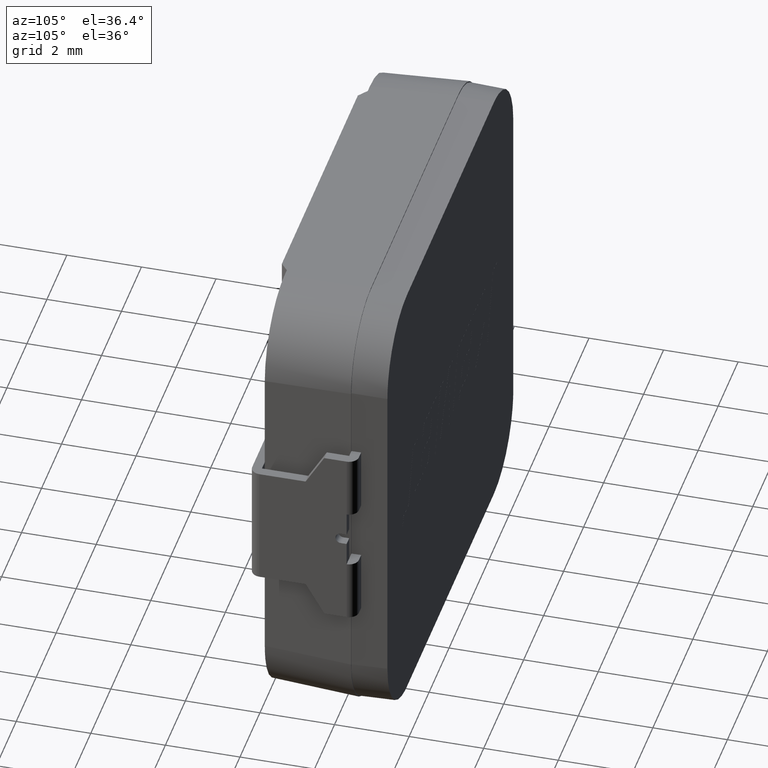
[diagram: clean part render]
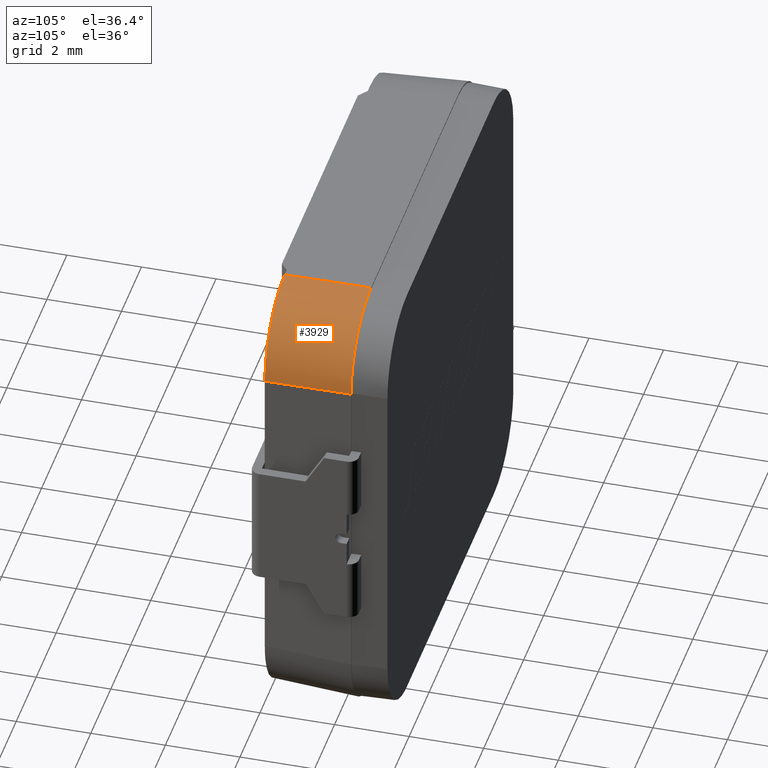
[diagram: same view with one face highlighted and labeled with its STEP entity id]
A machine part, auxiliary view. The second image highlights one B-rep face of the part: STEP entity #3929.
In plain terms, the highlighted cylindrical surface (partial cylindrical patch) has radius 2 mm, axis along (-0.0401, -0.9984, -0.0401).
Its self-contained STEP definition (entity closure, byte-faithful):
#167 = DIRECTION ( 'NONE',  ( -0.04009951417164850374, -0.9983907340948210418, -0.04009951417164846904 ) ) ;
#204 = VECTOR ( 'NONE', #3586, 1000.000000000000114 ) ;
#443 = VERTEX_POINT ( 'NONE', #6240 ) ;
#596 = EDGE_CURVE ( 'NONE', #443, #2172, #6243, .T. ) ;
#608 = FACE_OUTER_BOUND ( 'NONE', #3856, .T. ) ;
#685 = CARTESIAN_POINT ( 'NONE',  ( 4.334403328898682517, 2.191824758028442233, 4.334403328898672747 ) ) ;
#743 = ORIENTED_EDGE ( 'NONE', *, *, #2278, .F. ) ;
#1116 = ORIENTED_EDGE ( 'NONE', *, *, #3950, .F. ) ;
#1584 = DIRECTION ( 'NONE',  ( 0.9991943951144460767, -0.04013179253255987067, 0.0000000000000000000 ) ) ;
#1966 = CARTESIAN_POINT ( 'NONE',  ( 6.256015891416774721, 0.2000000000000013989, 4.257627101187869023 ) ) ;
#2050 = CARTESIAN_POINT ( 'NONE',  ( 4.351611209771112598, 2.540000000000000036, 6.349999999999996092 ) ) ;
#2172 = VERTEX_POINT ( 'NONE', #2990 ) ;
#2278 = EDGE_CURVE ( 'NONE', #4900, #3523, #2906, .T. ) ;
#2653 = CARTESIAN_POINT ( 'NONE',  ( 6.256015891416777386, 0.2000000000000013156, 5.428646283308213860 ) ) ;
#2699 = CARTESIAN_POINT ( 'NONE',  ( 5.428646283308224518, 0.2000000000000009548, 6.256015891416767616 ) ) ;
#2853 = EDGE_CURVE ( 'NONE', #3523, #443, #3795, .T. ) ;
#2882 = AXIS2_PLACEMENT_3D ( 'NONE', #685, #167, #1584 ) ;
#2906 = LINE ( 'NONE', #4814, #3221 ) ;
#2990 = CARTESIAN_POINT ( 'NONE',  ( 4.351611209771112598, 2.540000000000000036, 6.349999999999996092 ) ) ;
#3030 = CYLINDRICAL_SURFACE ( 'NONE', #2882, 2.000000000000000000 ) ;
#3163 = CARTESIAN_POINT ( 'NONE',  ( 6.256015891416774721, 0.2000000000000013989, 4.257627101187869023 ) ) ;
#3221 = VECTOR ( 'NONE', #4061, 1000.000000000000114 ) ;
#3523 = VERTEX_POINT ( 'NONE', #1966 ) ;
#3556 = CARTESIAN_POINT ( 'NONE',  ( 6.350000000000003197, 2.540000000000000480, 5.522630391891443224 ) ) ;
#3586 = DIRECTION ( 'NONE',  ( 0.04009951417164849680, 0.9983907340948209308, 0.04009951417164846904 ) ) ;
#3795 =( BOUNDED_CURVE ( )  B_SPLINE_CURVE ( 3, ( #3163, #2653, #2699, #4654 ),
 .UNSPECIFIED., .F., .T. ) 
 B_SPLINE_CURVE_WITH_KNOTS ( ( 4, 4 ),
 ( 2.356999770926423654, 3.926185536253172792 ),
 .UNSPECIFIED. ) 
 CURVE ( )  GEOMETRIC_REPRESENTATION_ITEM ( )  RATIONAL_B_SPLINE_CURVE ( ( 1.000000000000000000, 0.8051173142143840389, 0.8051173142143840389, 1.000000000000000000 ) ) 
 REPRESENTATION_ITEM ( '' )  );
#3807 = ORIENTED_EDGE ( 'NONE', *, *, #2853, .F. ) ;
#3856 = EDGE_LOOP ( 'NONE', ( #1116, #6254, #3807, #743 ) ) ;
#3929 = ADVANCED_FACE ( 'NONE', ( #608 ), #3030, .T. ) ;
#3950 = EDGE_CURVE ( 'NONE', #2172, #4900, #6119, .T. ) ;
#4061 = DIRECTION ( 'NONE',  ( -0.04009951417164849680, -0.9983907340948209308, -0.04009951417164846904 ) ) ;
#4475 = CARTESIAN_POINT ( 'NONE',  ( 5.522630391891455659, 2.540000000000000480, 6.349999999999992539 ) ) ;
#4654 = CARTESIAN_POINT ( 'NONE',  ( 4.257627101187878793, 0.2000000000000007327, 6.256015891416767616 ) ) ;
#4814 = CARTESIAN_POINT ( 'NONE',  ( 6.332792119127574004, 2.111561172963322353, 4.334403328898672747 ) ) ;
#4900 = VERTEX_POINT ( 'NONE', #5846 ) ;
#5846 = CARTESIAN_POINT ( 'NONE',  ( 6.350000000000004086, 2.540000000000000036, 4.351611209771101940 ) ) ;
#5987 = CARTESIAN_POINT ( 'NONE',  ( 4.334403328898682517, 2.111561172963321908, 6.332792119127566899 ) ) ;
#5998 = CARTESIAN_POINT ( 'NONE',  ( 6.350000000000004086, 2.540000000000000036, 4.351611209771101940 ) ) ;
#6119 =( BOUNDED_CURVE ( )  B_SPLINE_CURVE ( 3, ( #2050, #4475, #3556, #5998 ),
 .UNSPECIFIED., .F., .F. ) 
 B_SPLINE_CURVE_WITH_KNOTS ( ( 4, 4 ),
 ( 2.356999770926420545, 3.926185536253165687 ),
 .UNSPECIFIED. ) 
 CURVE ( )  GEOMETRIC_REPRESENTATION_ITEM ( )  RATIONAL_B_SPLINE_CURVE ( ( 1.000000000000000000, 0.8051173142143850381, 0.8051173142143850381, 1.000000000000000000 ) ) 
 REPRESENTATION_ITEM ( '' )  );
#6240 = CARTESIAN_POINT ( 'NONE',  ( 4.257627101187878793, 0.2000000000000007327, 6.256015891416767616 ) ) ;
#6243 = LINE ( 'NONE', #5987, #204 ) ;
#6254 = ORIENTED_EDGE ( 'NONE', *, *, #596, .F. ) ;